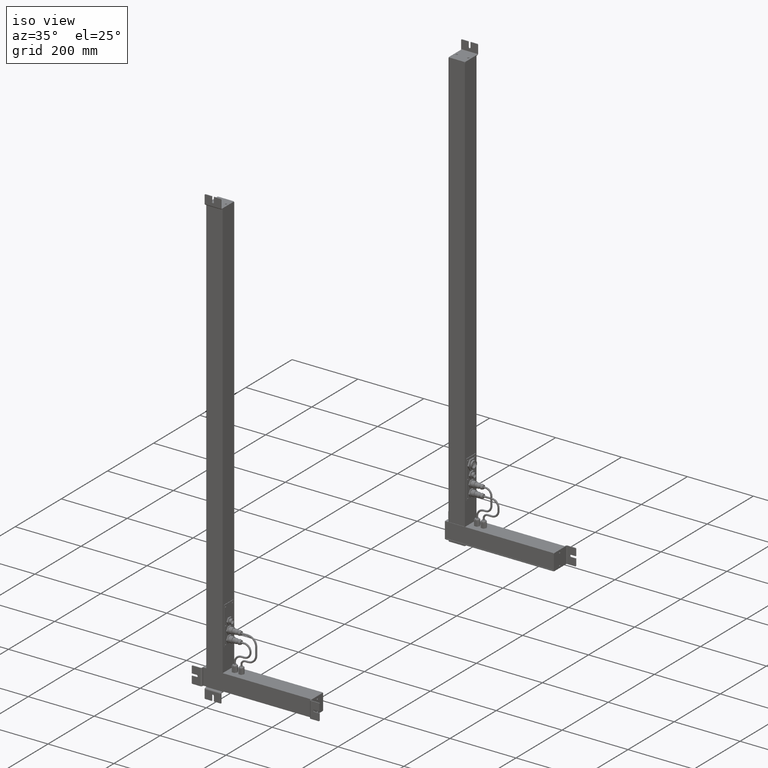
[diagram: clean part render]
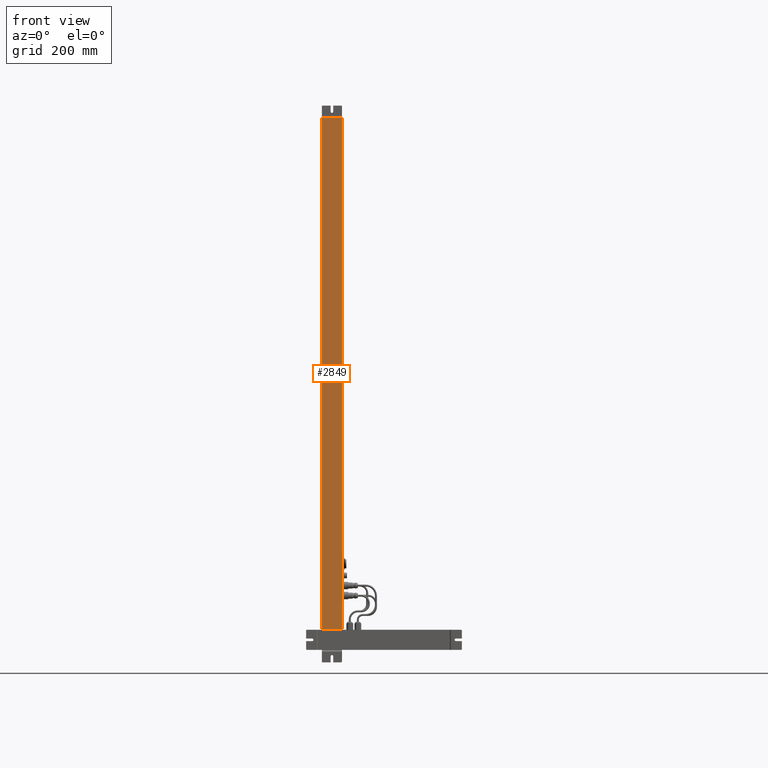
[diagram: tour spotlight — one face highlighted and labeled with its STEP entity id]
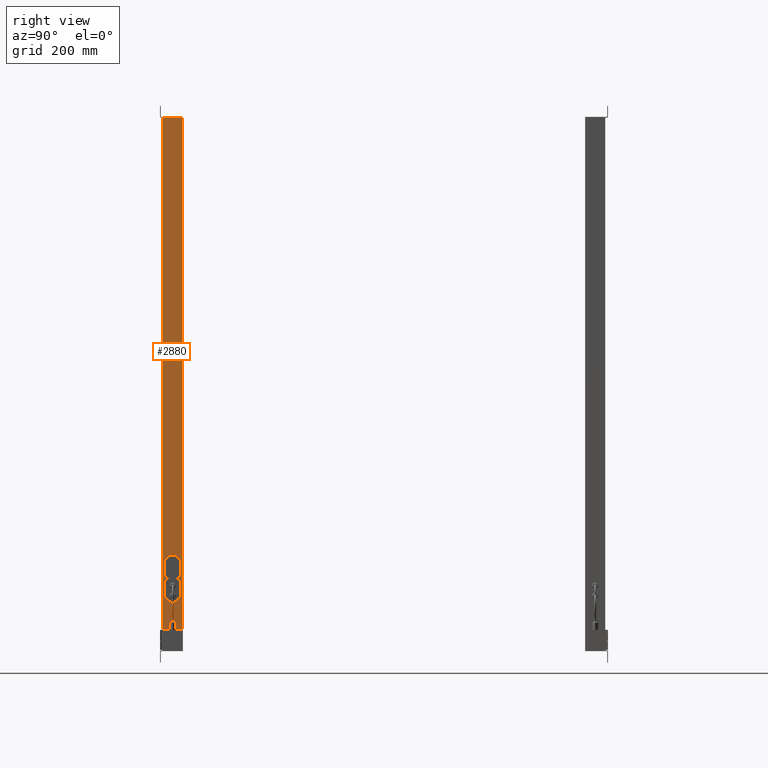
[diagram: tour spotlight — one face highlighted and labeled with its STEP entity id]
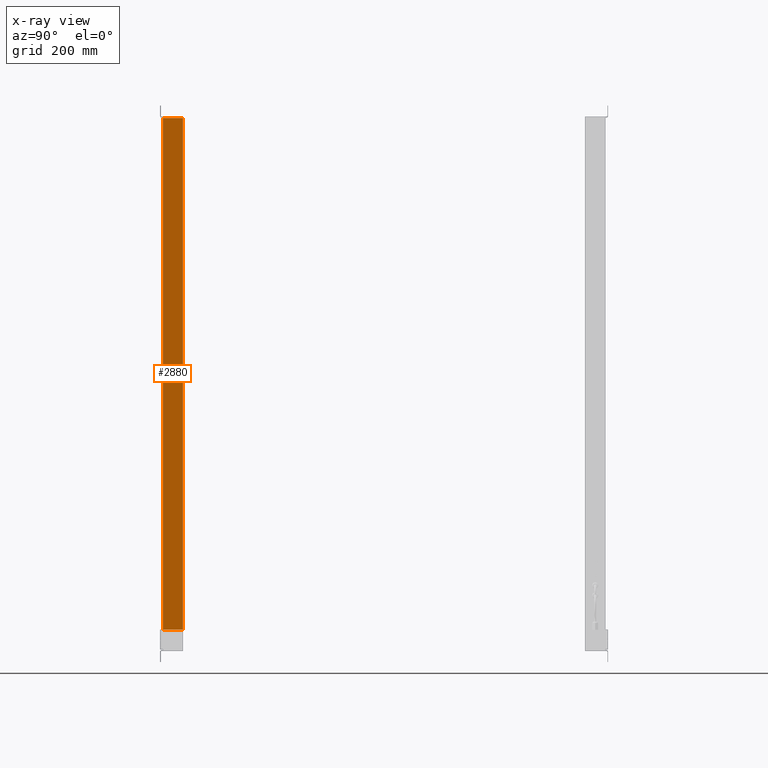
[diagram: x-ray of the same camera — body ghosted, this tour face saturated]
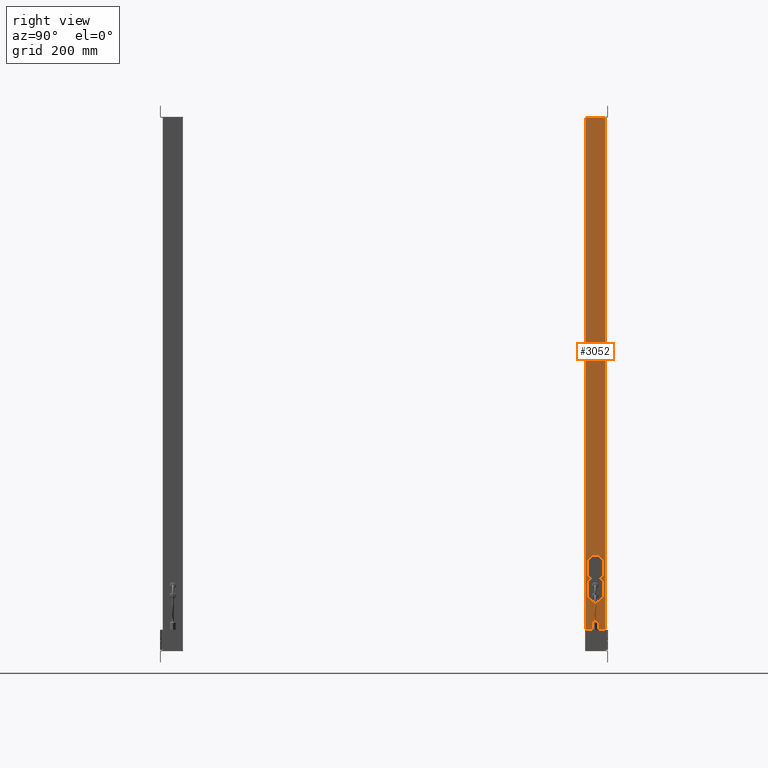
[diagram: tour spotlight — one face highlighted and labeled with its STEP entity id]
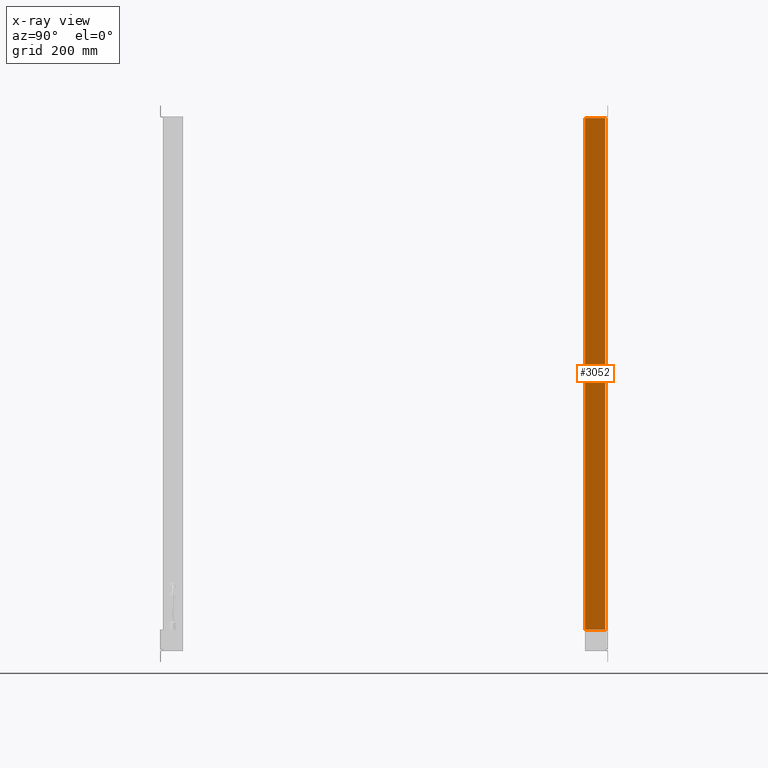
[diagram: x-ray of the same camera — body ghosted, this tour face saturated]
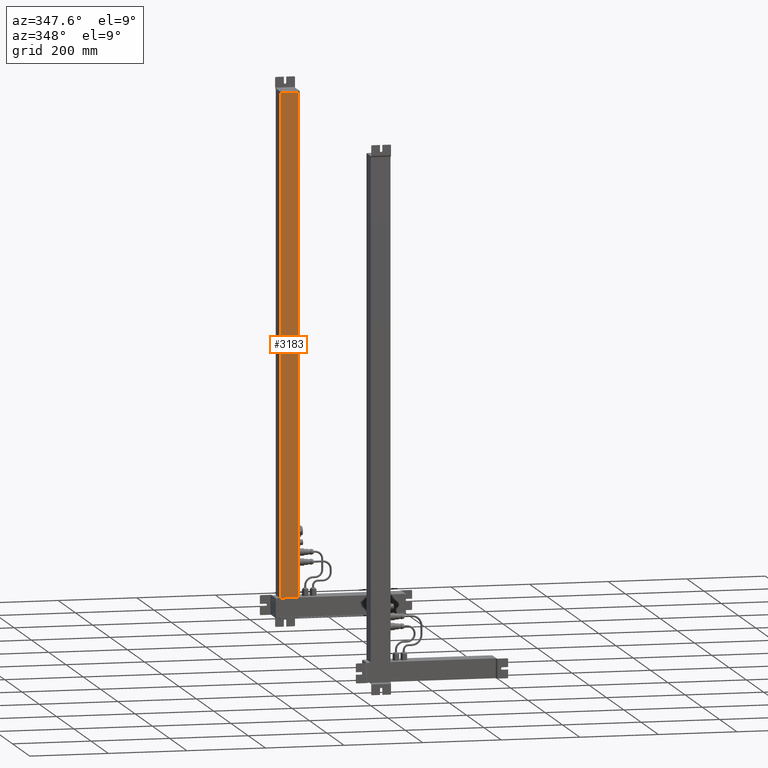
[diagram: tour spotlight — one face highlighted and labeled with its STEP entity id]
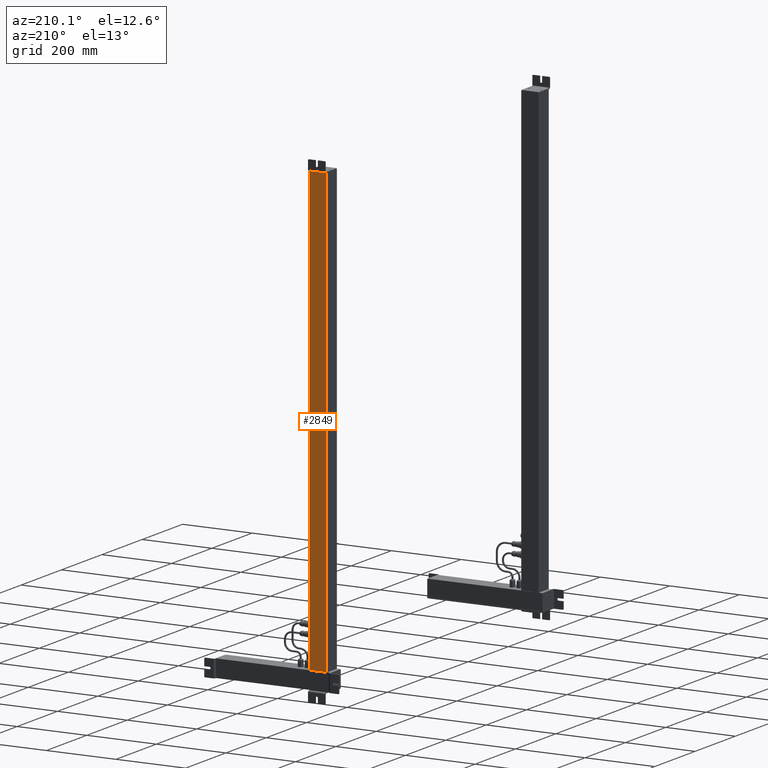
[diagram: tour spotlight — one face highlighted and labeled with its STEP entity id]
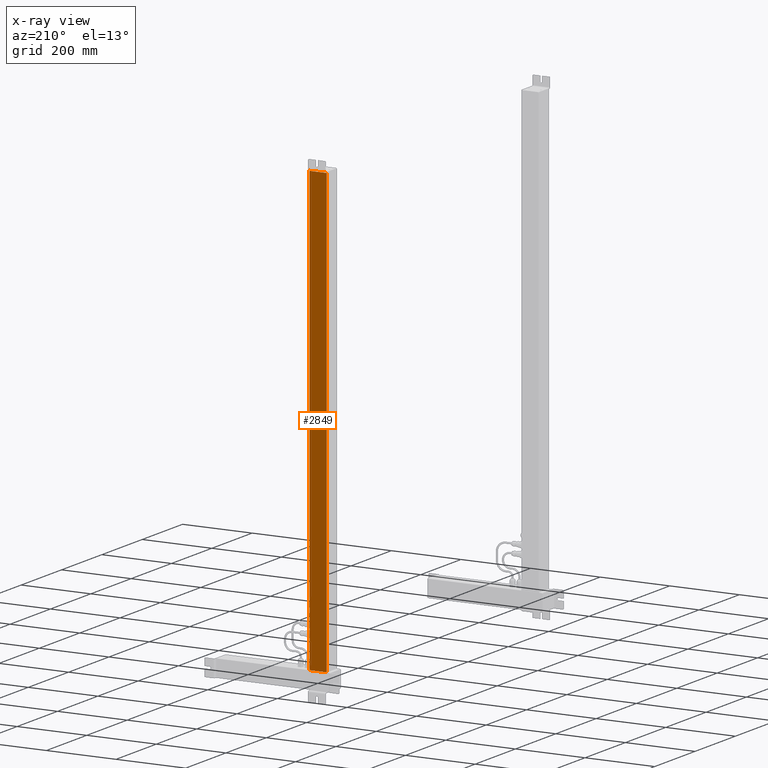
[diagram: x-ray of the same camera — body ghosted, this tour face saturated]
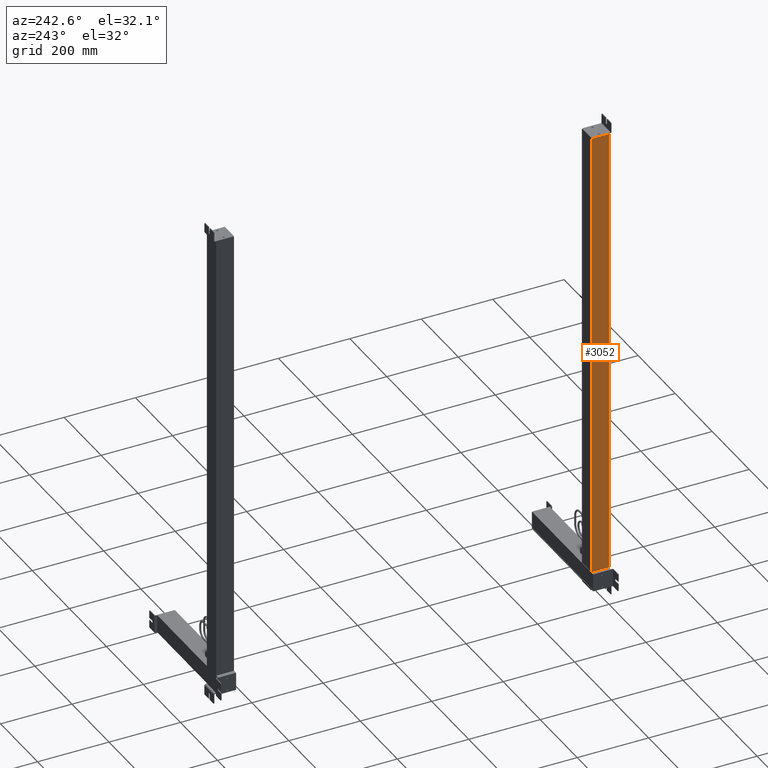
[diagram: tour spotlight — one face highlighted and labeled with its STEP entity id]
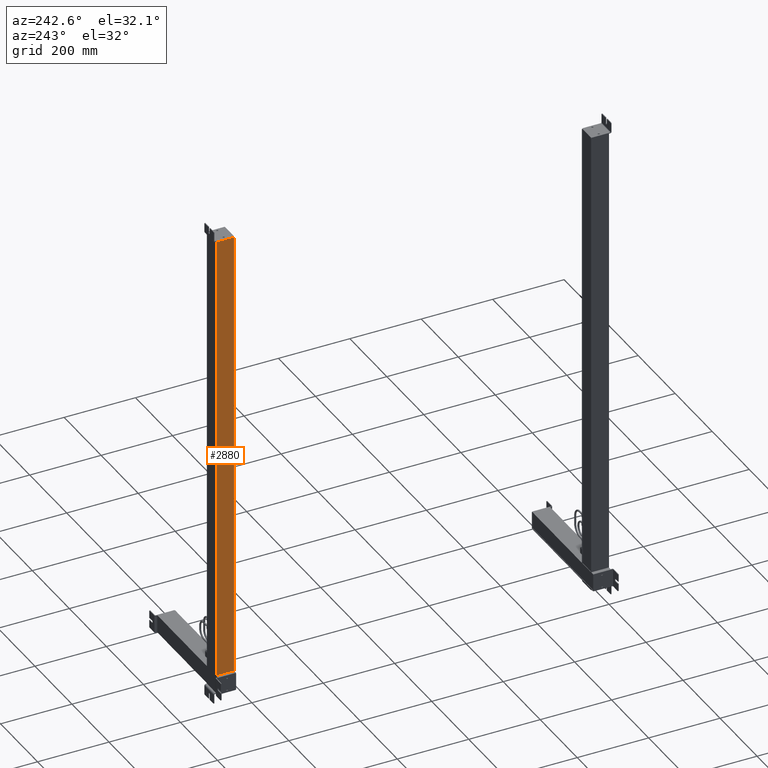
[diagram: tour spotlight — one face highlighted and labeled with its STEP entity id]
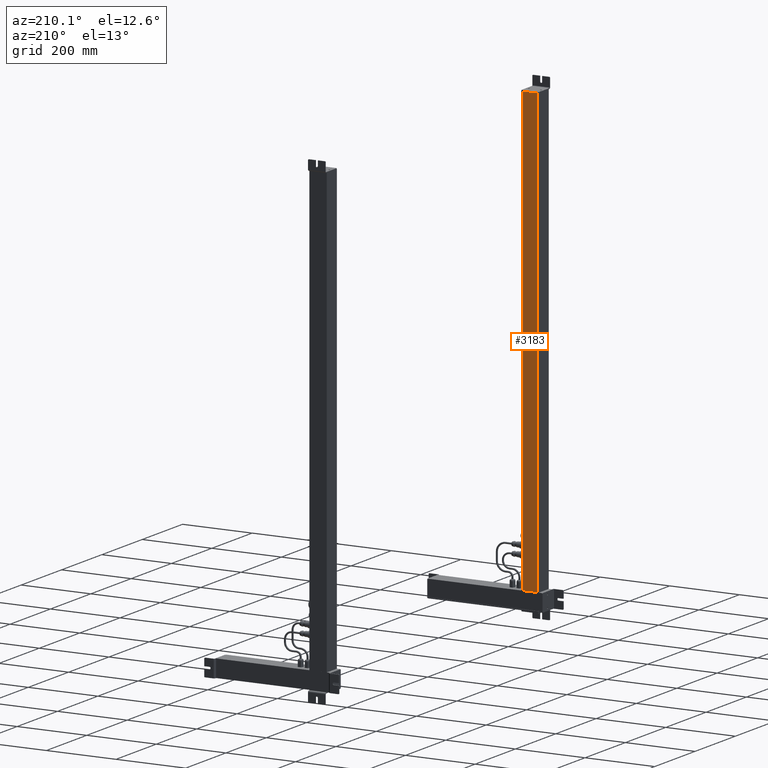
[diagram: tour spotlight — one face highlighted and labeled with its STEP entity id]
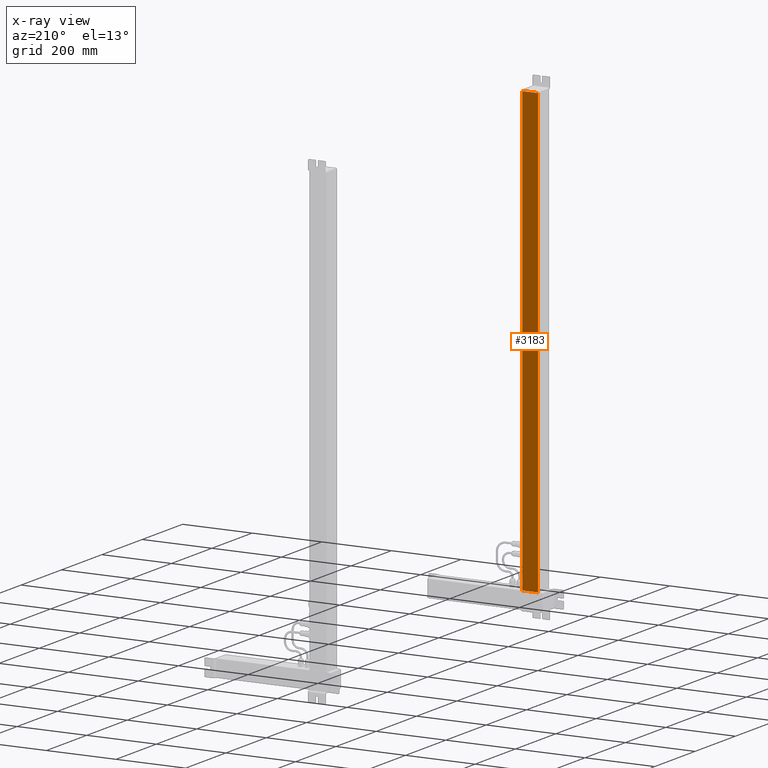
[diagram: x-ray of the same camera — body ghosted, this tour face saturated]
A machine part: a face-by-face anatomy tour. The part has 767 B-rep faces; the first image is the clean iso view, then the 8 largest visible faces are spotlighted one at a time (largest first), each with its STEP entity span.

Face 1 — front view, entity #2849. In plain terms, the highlighted planar face has unit normal (0, -1, 0).
Definition (entity closure, byte-faithful):
#2810=CARTESIAN_POINT('Axis2P3D Location',(0.,0.,0.)) ;
#2815=CARTESIAN_POINT('Line Origine',(0.,0.,636.)) ;
#2819=CARTESIAN_POINT('Vertex',(0.,0.,0.)) ;
#2821=CARTESIAN_POINT('Vertex',(0.,0.,1272.)) ;
#2824=CARTESIAN_POINT('Line Origine',(25.,0.,0.)) ;
#2828=CARTESIAN_POINT('Vertex',(50.,0.,0.)) ;
#2831=CARTESIAN_POINT('Line Origine',(50.,0.,636.)) ;
#2835=CARTESIAN_POINT('Vertex',(50.,0.,1272.)) ;
#2838=CARTESIAN_POINT('Line Origine',(25.,0.,1272.)) ;
#2811=DIRECTION('Axis2P3D Direction',(0.,-1.,0.)) ;
#2812=DIRECTION('Axis2P3D XDirection',(1.,0.,0.)) ;
#2816=DIRECTION('Vector Direction',(0.,0.,1.)) ;
#2825=DIRECTION('Vector Direction',(1.,0.,0.)) ;
#2832=DIRECTION('Vector Direction',(0.,0.,1.)) ;
#2839=DIRECTION('Vector Direction',(1.,0.,0.)) ;
#2813=AXIS2_PLACEMENT_3D('Plane Axis2P3D',#2810,#2811,#2812) ;
#2844=ORIENTED_EDGE('',*,*,#2823,.F.) ;
#2845=ORIENTED_EDGE('',*,*,#2830,.T.) ;
#2846=ORIENTED_EDGE('',*,*,#2837,.T.) ;
#2847=ORIENTED_EDGE('',*,*,#2842,.F.) ;
#2817=VECTOR('Line Direction',#2816,1.) ;
#2826=VECTOR('Line Direction',#2825,1.) ;
#2833=VECTOR('Line Direction',#2832,1.) ;
#2840=VECTOR('Line Direction',#2839,1.) ;
#2849=ADVANCED_FACE('PartBody',(#2848),#2814,.T.) ;
#2823=EDGE_CURVE('',#2820,#2822,#2818,.T.) ;
#2830=EDGE_CURVE('',#2820,#2829,#2827,.T.) ;
#2837=EDGE_CURVE('',#2829,#2836,#2834,.T.) ;
#2842=EDGE_CURVE('',#2822,#2836,#2841,.T.) ;
#2843=EDGE_LOOP('',(#2844,#2845,#2846,#2847)) ;
#2848=FACE_OUTER_BOUND('',#2843,.T.) ;
#2818=LINE('Line',#2815,#2817) ;
#2827=LINE('Line',#2824,#2826) ;
#2834=LINE('Line',#2831,#2833) ;
#2841=LINE('Line',#2838,#2840) ;
#2814=PLANE('Plane',#2813) ;
#2820=VERTEX_POINT('',#2819) ;
#2822=VERTEX_POINT('',#2821) ;
#2829=VERTEX_POINT('',#2828) ;
#2836=VERTEX_POINT('',#2835) ;

Face 2 — right view, entity #2880. An x-ray twin of the same camera follows (body ghosted, this face saturated) — the face is partly hidden behind the body. In plain terms, the highlighted planar face has unit normal (1, 0, 0).
Definition (entity closure, byte-faithful):
#2828=CARTESIAN_POINT('Vertex',(50.,0.,0.)) ;
#2831=CARTESIAN_POINT('Line Origine',(50.,0.,636.)) ;
#2835=CARTESIAN_POINT('Vertex',(50.,0.,1272.)) ;
#2850=CARTESIAN_POINT('Axis2P3D Location',(50.,2.90282621546E-015,0.)) ;
#2855=CARTESIAN_POINT('Line Origine',(50.,25.,0.)) ;
#2859=CARTESIAN_POINT('Vertex',(50.,50.,0.)) ;
#2862=CARTESIAN_POINT('Line Origine',(50.,50.,636.)) ;
#2866=CARTESIAN_POINT('Vertex',(50.,50.,1272.)) ;
#2869=CARTESIAN_POINT('Line Origine',(50.,25.,1272.)) ;
#2832=DIRECTION('Vector Direction',(0.,0.,1.)) ;
#2851=DIRECTION('Axis2P3D Direction',(1.,0.,0.)) ;
#2852=DIRECTION('Axis2P3D XDirection',(0.,1.,0.)) ;
#2856=DIRECTION('Vector Direction',(0.,1.,0.)) ;
#2863=DIRECTION('Vector Direction',(0.,0.,1.)) ;
#2870=DIRECTION('Vector Direction',(0.,1.,0.)) ;
#2853=AXIS2_PLACEMENT_3D('Plane Axis2P3D',#2850,#2851,#2852) ;
#2875=ORIENTED_EDGE('',*,*,#2837,.F.) ;
#2876=ORIENTED_EDGE('',*,*,#2861,.T.) ;
#2877=ORIENTED_EDGE('',*,*,#2868,.T.) ;
#2878=ORIENTED_EDGE('',*,*,#2873,.F.) ;
#2833=VECTOR('Line Direction',#2832,1.) ;
#2857=VECTOR('Line Direction',#2856,1.) ;
#2864=VECTOR('Line Direction',#2863,1.) ;
#2871=VECTOR('Line Direction',#2870,1.) ;
#2880=ADVANCED_FACE('PartBody',(#2879),#2854,.T.) ;
#2837=EDGE_CURVE('',#2829,#2836,#2834,.T.) ;
#2861=EDGE_CURVE('',#2829,#2860,#2858,.T.) ;
#2868=EDGE_CURVE('',#2860,#2867,#2865,.T.) ;
#2873=EDGE_CURVE('',#2836,#2867,#2872,.T.) ;
#2874=EDGE_LOOP('',(#2875,#2876,#2877,#2878)) ;
#2879=FACE_OUTER_BOUND('',#2874,.T.) ;
#2834=LINE('Line',#2831,#2833) ;
#2858=LINE('Line',#2855,#2857) ;
#2865=LINE('Line',#2862,#2864) ;
#2872=LINE('Line',#2869,#2871) ;
#2854=PLANE('Plane',#2853) ;
#2829=VERTEX_POINT('',#2828) ;
#2836=VERTEX_POINT('',#2835) ;
#2860=VERTEX_POINT('',#2859) ;
#2867=VERTEX_POINT('',#2866) ;

Face 3 — right view, entity #3052. An x-ray twin of the same camera follows (body ghosted, this face saturated) — the face is partly hidden behind the body. In plain terms, the highlighted planar face has unit normal (1, 0, 0).
Definition (entity closure, byte-faithful):
#2815=CARTESIAN_POINT('Line Origine',(0.,0.,636.)) ;
#2819=CARTESIAN_POINT('Vertex',(0.,0.,0.)) ;
#2821=CARTESIAN_POINT('Vertex',(0.,0.,1272.)) ;
#3009=CARTESIAN_POINT('Vertex',(9.32587340685E-015,50.,0.)) ;
#3012=CARTESIAN_POINT('Line Origine',(7.1054273576E-015,50.,636.)) ;
#3016=CARTESIAN_POINT('Vertex',(9.32587340685E-015,50.,1272.)) ;
#3031=CARTESIAN_POINT('Axis2P3D Location',(0.,50.,0.)) ;
#3036=CARTESIAN_POINT('Line Origine',(0.,25.,0.)) ;
#3041=CARTESIAN_POINT('Line Origine',(0.,25.,1272.)) ;
#2816=DIRECTION('Vector Direction',(0.,0.,1.)) ;
#3013=DIRECTION('Vector Direction',(0.,0.,1.)) ;
#3032=DIRECTION('Axis2P3D Direction',(-1.,0.,0.)) ;
#3033=DIRECTION('Axis2P3D XDirection',(0.,-1.,0.)) ;
#3037=DIRECTION('Vector Direction',(0.,-1.,0.)) ;
#3042=DIRECTION('Vector Direction',(0.,-1.,0.)) ;
#3034=AXIS2_PLACEMENT_3D('Plane Axis2P3D',#3031,#3032,#3033) ;
#3047=ORIENTED_EDGE('',*,*,#3018,.F.) ;
#3048=ORIENTED_EDGE('',*,*,#3040,.T.) ;
#3049=ORIENTED_EDGE('',*,*,#2823,.T.) ;
#3050=ORIENTED_EDGE('',*,*,#3045,.F.) ;
#2817=VECTOR('Line Direction',#2816,1.) ;
#3014=VECTOR('Line Direction',#3013,1.) ;
#3038=VECTOR('Line Direction',#3037,1.) ;
#3043=VECTOR('Line Direction',#3042,1.) ;
#3052=ADVANCED_FACE('PartBody',(#3051),#3035,.T.) ;
#2823=EDGE_CURVE('',#2820,#2822,#2818,.T.) ;
#3018=EDGE_CURVE('',#3010,#3017,#3015,.T.) ;
#3040=EDGE_CURVE('',#3010,#2820,#3039,.T.) ;
#3045=EDGE_CURVE('',#3017,#2822,#3044,.T.) ;
#3046=EDGE_LOOP('',(#3047,#3048,#3049,#3050)) ;
#3051=FACE_OUTER_BOUND('',#3046,.T.) ;
#2818=LINE('Line',#2815,#2817) ;
#3015=LINE('Line',#3012,#3014) ;
#3039=LINE('Line',#3036,#3038) ;
#3044=LINE('Line',#3041,#3043) ;
#3035=PLANE('Plane',#3034) ;
#2820=VERTEX_POINT('',#2819) ;
#2822=VERTEX_POINT('',#2821) ;
#3010=VERTEX_POINT('',#3009) ;
#3017=VERTEX_POINT('',#3016) ;

Face 4 — auxiliary view, entity #3183. In plain terms, the highlighted planar face has unit normal (0, -1, 0).
Definition (entity closure, byte-faithful):
#3100=CARTESIAN_POINT('Vertex',(2.5,49.,0.)) ;
#3103=CARTESIAN_POINT('Line Origine',(25.,49.,0.)) ;
#3107=CARTESIAN_POINT('Vertex',(47.5,49.,0.)) ;
#3140=CARTESIAN_POINT('Vertex',(2.5,49.,1272.)) ;
#3143=CARTESIAN_POINT('Line Origine',(2.5,49.,636.)) ;
#3160=CARTESIAN_POINT('Axis2P3D Location',(47.5,49.,0.)) ;
#3165=CARTESIAN_POINT('Line Origine',(47.5,49.,636.)) ;
#3169=CARTESIAN_POINT('Vertex',(47.5,49.,1272.)) ;
#3172=CARTESIAN_POINT('Line Origine',(25.,49.,1272.)) ;
#3104=DIRECTION('Vector Direction',(-1.,0.,0.)) ;
#3144=DIRECTION('Vector Direction',(0.,0.,1.)) ;
#3161=DIRECTION('Axis2P3D Direction',(0.,1.,-0.)) ;
#3162=DIRECTION('Axis2P3D XDirection',(-1.,0.,0.)) ;
#3166=DIRECTION('Vector Direction',(0.,0.,1.)) ;
#3173=DIRECTION('Vector Direction',(-1.,0.,0.)) ;
#3163=AXIS2_PLACEMENT_3D('Plane Axis2P3D',#3160,#3161,#3162) ;
#3178=ORIENTED_EDGE('',*,*,#3171,.F.) ;
#3179=ORIENTED_EDGE('',*,*,#3109,.F.) ;
#3180=ORIENTED_EDGE('',*,*,#3147,.T.) ;
#3181=ORIENTED_EDGE('',*,*,#3176,.F.) ;
#3105=VECTOR('Line Direction',#3104,1.) ;
#3145=VECTOR('Line Direction',#3144,1.) ;
#3167=VECTOR('Line Direction',#3166,1.) ;
#3174=VECTOR('Line Direction',#3173,1.) ;
#3183=ADVANCED_FACE('Body.2',(#3182),#3164,.T.) ;
#3109=EDGE_CURVE('',#3101,#3108,#3106,.F.) ;
#3147=EDGE_CURVE('',#3101,#3141,#3146,.T.) ;
#3171=EDGE_CURVE('',#3108,#3170,#3168,.T.) ;
#3176=EDGE_CURVE('',#3170,#3141,#3175,.T.) ;
#3177=EDGE_LOOP('',(#3178,#3179,#3180,#3181)) ;
#3182=FACE_OUTER_BOUND('',#3177,.T.) ;
#3106=LINE('Line',#3103,#3105) ;
#3146=LINE('Line',#3143,#3145) ;
#3168=LINE('Line',#3165,#3167) ;
#3175=LINE('Line',#3172,#3174) ;
#3164=PLANE('Plane',#3163) ;
#3101=VERTEX_POINT('',#3100) ;
#3108=VERTEX_POINT('',#3107) ;
#3141=VERTEX_POINT('',#3140) ;
#3170=VERTEX_POINT('',#3169) ;

Face 5 — auxiliary view, entity #2849. An x-ray twin of the same camera follows (body ghosted, this face saturated) — the face is partly hidden behind the body. In plain terms, the highlighted planar face has unit normal (0, 1, 0).
Definition (entity closure, byte-faithful):
#2810=CARTESIAN_POINT('Axis2P3D Location',(0.,0.,0.)) ;
#2815=CARTESIAN_POINT('Line Origine',(0.,0.,636.)) ;
#2819=CARTESIAN_POINT('Vertex',(0.,0.,0.)) ;
#2821=CARTESIAN_POINT('Vertex',(0.,0.,1272.)) ;
#2824=CARTESIAN_POINT('Line Origine',(25.,0.,0.)) ;
#2828=CARTESIAN_POINT('Vertex',(50.,0.,0.)) ;
#2831=CARTESIAN_POINT('Line Origine',(50.,0.,636.)) ;
#2835=CARTESIAN_POINT('Vertex',(50.,0.,1272.)) ;
#2838=CARTESIAN_POINT('Line Origine',(25.,0.,1272.)) ;
#2811=DIRECTION('Axis2P3D Direction',(0.,-1.,0.)) ;
#2812=DIRECTION('Axis2P3D XDirection',(1.,0.,0.)) ;
#2816=DIRECTION('Vector Direction',(0.,0.,1.)) ;
#2825=DIRECTION('Vector Direction',(1.,0.,0.)) ;
#2832=DIRECTION('Vector Direction',(0.,0.,1.)) ;
#2839=DIRECTION('Vector Direction',(1.,0.,0.)) ;
#2813=AXIS2_PLACEMENT_3D('Plane Axis2P3D',#2810,#2811,#2812) ;
#2844=ORIENTED_EDGE('',*,*,#2823,.F.) ;
#2845=ORIENTED_EDGE('',*,*,#2830,.T.) ;
#2846=ORIENTED_EDGE('',*,*,#2837,.T.) ;
#2847=ORIENTED_EDGE('',*,*,#2842,.F.) ;
#2817=VECTOR('Line Direction',#2816,1.) ;
#2826=VECTOR('Line Direction',#2825,1.) ;
#2833=VECTOR('Line Direction',#2832,1.) ;
#2840=VECTOR('Line Direction',#2839,1.) ;
#2849=ADVANCED_FACE('PartBody',(#2848),#2814,.T.) ;
#2823=EDGE_CURVE('',#2820,#2822,#2818,.T.) ;
#2830=EDGE_CURVE('',#2820,#2829,#2827,.T.) ;
#2837=EDGE_CURVE('',#2829,#2836,#2834,.T.) ;
#2842=EDGE_CURVE('',#2822,#2836,#2841,.T.) ;
#2843=EDGE_LOOP('',(#2844,#2845,#2846,#2847)) ;
#2848=FACE_OUTER_BOUND('',#2843,.T.) ;
#2818=LINE('Line',#2815,#2817) ;
#2827=LINE('Line',#2824,#2826) ;
#2834=LINE('Line',#2831,#2833) ;
#2841=LINE('Line',#2838,#2840) ;
#2814=PLANE('Plane',#2813) ;
#2820=VERTEX_POINT('',#2819) ;
#2822=VERTEX_POINT('',#2821) ;
#2829=VERTEX_POINT('',#2828) ;
#2836=VERTEX_POINT('',#2835) ;

Face 6 — auxiliary view, entity #3052. In plain terms, the highlighted planar face has unit normal (-1, 0, 0).
Definition (entity closure, byte-faithful):
#2815=CARTESIAN_POINT('Line Origine',(0.,0.,636.)) ;
#2819=CARTESIAN_POINT('Vertex',(0.,0.,0.)) ;
#2821=CARTESIAN_POINT('Vertex',(0.,0.,1272.)) ;
#3009=CARTESIAN_POINT('Vertex',(9.32587340685E-015,50.,0.)) ;
#3012=CARTESIAN_POINT('Line Origine',(7.1054273576E-015,50.,636.)) ;
#3016=CARTESIAN_POINT('Vertex',(9.32587340685E-015,50.,1272.)) ;
#3031=CARTESIAN_POINT('Axis2P3D Location',(0.,50.,0.)) ;
#3036=CARTESIAN_POINT('Line Origine',(0.,25.,0.)) ;
#3041=CARTESIAN_POINT('Line Origine',(0.,25.,1272.)) ;
#2816=DIRECTION('Vector Direction',(0.,0.,1.)) ;
#3013=DIRECTION('Vector Direction',(0.,0.,1.)) ;
#3032=DIRECTION('Axis2P3D Direction',(-1.,0.,0.)) ;
#3033=DIRECTION('Axis2P3D XDirection',(0.,-1.,0.)) ;
#3037=DIRECTION('Vector Direction',(0.,-1.,0.)) ;
#3042=DIRECTION('Vector Direction',(0.,-1.,0.)) ;
#3034=AXIS2_PLACEMENT_3D('Plane Axis2P3D',#3031,#3032,#3033) ;
#3047=ORIENTED_EDGE('',*,*,#3018,.F.) ;
#3048=ORIENTED_EDGE('',*,*,#3040,.T.) ;
#3049=ORIENTED_EDGE('',*,*,#2823,.T.) ;
#3050=ORIENTED_EDGE('',*,*,#3045,.F.) ;
#2817=VECTOR('Line Direction',#2816,1.) ;
#3014=VECTOR('Line Direction',#3013,1.) ;
#3038=VECTOR('Line Direction',#3037,1.) ;
#3043=VECTOR('Line Direction',#3042,1.) ;
#3052=ADVANCED_FACE('PartBody',(#3051),#3035,.T.) ;
#2823=EDGE_CURVE('',#2820,#2822,#2818,.T.) ;
#3018=EDGE_CURVE('',#3010,#3017,#3015,.T.) ;
#3040=EDGE_CURVE('',#3010,#2820,#3039,.T.) ;
#3045=EDGE_CURVE('',#3017,#2822,#3044,.T.) ;
#3046=EDGE_LOOP('',(#3047,#3048,#3049,#3050)) ;
#3051=FACE_OUTER_BOUND('',#3046,.T.) ;
#2818=LINE('Line',#2815,#2817) ;
#3015=LINE('Line',#3012,#3014) ;
#3039=LINE('Line',#3036,#3038) ;
#3044=LINE('Line',#3041,#3043) ;
#3035=PLANE('Plane',#3034) ;
#2820=VERTEX_POINT('',#2819) ;
#2822=VERTEX_POINT('',#2821) ;
#3010=VERTEX_POINT('',#3009) ;
#3017=VERTEX_POINT('',#3016) ;

Face 7 — auxiliary view, entity #2880. In plain terms, the highlighted planar face has unit normal (-1, 0, 0).
Definition (entity closure, byte-faithful):
#2828=CARTESIAN_POINT('Vertex',(50.,0.,0.)) ;
#2831=CARTESIAN_POINT('Line Origine',(50.,0.,636.)) ;
#2835=CARTESIAN_POINT('Vertex',(50.,0.,1272.)) ;
#2850=CARTESIAN_POINT('Axis2P3D Location',(50.,2.90282621546E-015,0.)) ;
#2855=CARTESIAN_POINT('Line Origine',(50.,25.,0.)) ;
#2859=CARTESIAN_POINT('Vertex',(50.,50.,0.)) ;
#2862=CARTESIAN_POINT('Line Origine',(50.,50.,636.)) ;
#2866=CARTESIAN_POINT('Vertex',(50.,50.,1272.)) ;
#2869=CARTESIAN_POINT('Line Origine',(50.,25.,1272.)) ;
#2832=DIRECTION('Vector Direction',(0.,0.,1.)) ;
#2851=DIRECTION('Axis2P3D Direction',(1.,0.,0.)) ;
#2852=DIRECTION('Axis2P3D XDirection',(0.,1.,0.)) ;
#2856=DIRECTION('Vector Direction',(0.,1.,0.)) ;
#2863=DIRECTION('Vector Direction',(0.,0.,1.)) ;
#2870=DIRECTION('Vector Direction',(0.,1.,0.)) ;
#2853=AXIS2_PLACEMENT_3D('Plane Axis2P3D',#2850,#2851,#2852) ;
#2875=ORIENTED_EDGE('',*,*,#2837,.F.) ;
#2876=ORIENTED_EDGE('',*,*,#2861,.T.) ;
#2877=ORIENTED_EDGE('',*,*,#2868,.T.) ;
#2878=ORIENTED_EDGE('',*,*,#2873,.F.) ;
#2833=VECTOR('Line Direction',#2832,1.) ;
#2857=VECTOR('Line Direction',#2856,1.) ;
#2864=VECTOR('Line Direction',#2863,1.) ;
#2871=VECTOR('Line Direction',#2870,1.) ;
#2880=ADVANCED_FACE('PartBody',(#2879),#2854,.T.) ;
#2837=EDGE_CURVE('',#2829,#2836,#2834,.T.) ;
#2861=EDGE_CURVE('',#2829,#2860,#2858,.T.) ;
#2868=EDGE_CURVE('',#2860,#2867,#2865,.T.) ;
#2873=EDGE_CURVE('',#2836,#2867,#2872,.T.) ;
#2874=EDGE_LOOP('',(#2875,#2876,#2877,#2878)) ;
#2879=FACE_OUTER_BOUND('',#2874,.T.) ;
#2834=LINE('Line',#2831,#2833) ;
#2858=LINE('Line',#2855,#2857) ;
#2865=LINE('Line',#2862,#2864) ;
#2872=LINE('Line',#2869,#2871) ;
#2854=PLANE('Plane',#2853) ;
#2829=VERTEX_POINT('',#2828) ;
#2836=VERTEX_POINT('',#2835) ;
#2860=VERTEX_POINT('',#2859) ;
#2867=VERTEX_POINT('',#2866) ;

Face 8 — auxiliary view, entity #3183. An x-ray twin of the same camera follows (body ghosted, this face saturated) — the face is partly hidden behind the body. In plain terms, the highlighted planar face has unit normal (0, 1, 0).
Definition (entity closure, byte-faithful):
#3100=CARTESIAN_POINT('Vertex',(2.5,49.,0.)) ;
#3103=CARTESIAN_POINT('Line Origine',(25.,49.,0.)) ;
#3107=CARTESIAN_POINT('Vertex',(47.5,49.,0.)) ;
#3140=CARTESIAN_POINT('Vertex',(2.5,49.,1272.)) ;
#3143=CARTESIAN_POINT('Line Origine',(2.5,49.,636.)) ;
#3160=CARTESIAN_POINT('Axis2P3D Location',(47.5,49.,0.)) ;
#3165=CARTESIAN_POINT('Line Origine',(47.5,49.,636.)) ;
#3169=CARTESIAN_POINT('Vertex',(47.5,49.,1272.)) ;
#3172=CARTESIAN_POINT('Line Origine',(25.,49.,1272.)) ;
#3104=DIRECTION('Vector Direction',(-1.,0.,0.)) ;
#3144=DIRECTION('Vector Direction',(0.,0.,1.)) ;
#3161=DIRECTION('Axis2P3D Direction',(0.,1.,-0.)) ;
#3162=DIRECTION('Axis2P3D XDirection',(-1.,0.,0.)) ;
#3166=DIRECTION('Vector Direction',(0.,0.,1.)) ;
#3173=DIRECTION('Vector Direction',(-1.,0.,0.)) ;
#3163=AXIS2_PLACEMENT_3D('Plane Axis2P3D',#3160,#3161,#3162) ;
#3178=ORIENTED_EDGE('',*,*,#3171,.F.) ;
#3179=ORIENTED_EDGE('',*,*,#3109,.F.) ;
#3180=ORIENTED_EDGE('',*,*,#3147,.T.) ;
#3181=ORIENTED_EDGE('',*,*,#3176,.F.) ;
#3105=VECTOR('Line Direction',#3104,1.) ;
#3145=VECTOR('Line Direction',#3144,1.) ;
#3167=VECTOR('Line Direction',#3166,1.) ;
#3174=VECTOR('Line Direction',#3173,1.) ;
#3183=ADVANCED_FACE('Body.2',(#3182),#3164,.T.) ;
#3109=EDGE_CURVE('',#3101,#3108,#3106,.F.) ;
#3147=EDGE_CURVE('',#3101,#3141,#3146,.T.) ;
#3171=EDGE_CURVE('',#3108,#3170,#3168,.T.) ;
#3176=EDGE_CURVE('',#3170,#3141,#3175,.T.) ;
#3177=EDGE_LOOP('',(#3178,#3179,#3180,#3181)) ;
#3182=FACE_OUTER_BOUND('',#3177,.T.) ;
#3106=LINE('Line',#3103,#3105) ;
#3146=LINE('Line',#3143,#3145) ;
#3168=LINE('Line',#3165,#3167) ;
#3175=LINE('Line',#3172,#3174) ;
#3164=PLANE('Plane',#3163) ;
#3101=VERTEX_POINT('',#3100) ;
#3108=VERTEX_POINT('',#3107) ;
#3141=VERTEX_POINT('',#3140) ;
#3170=VERTEX_POINT('',#3169) ;